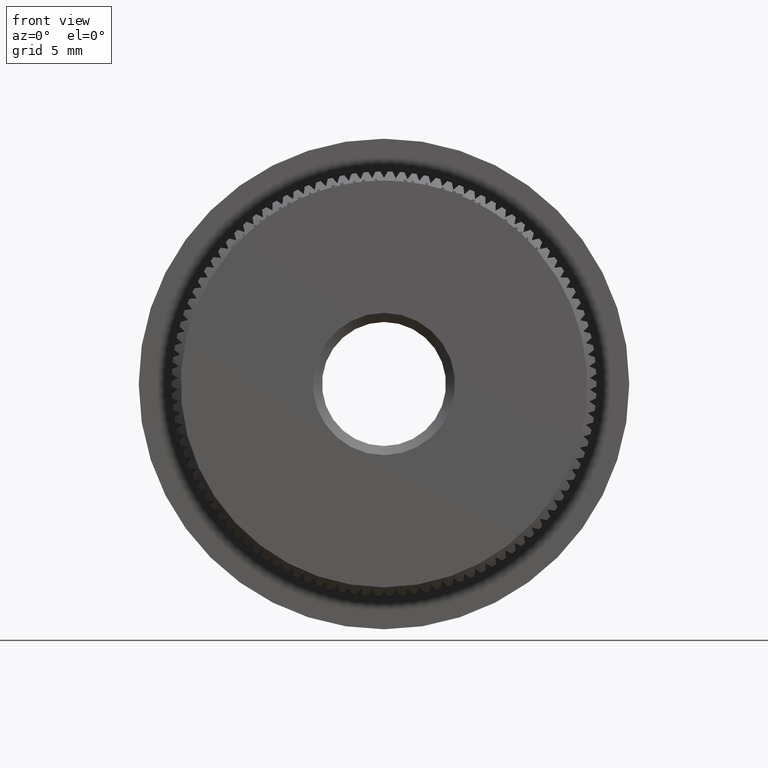
[diagram: clean part render]
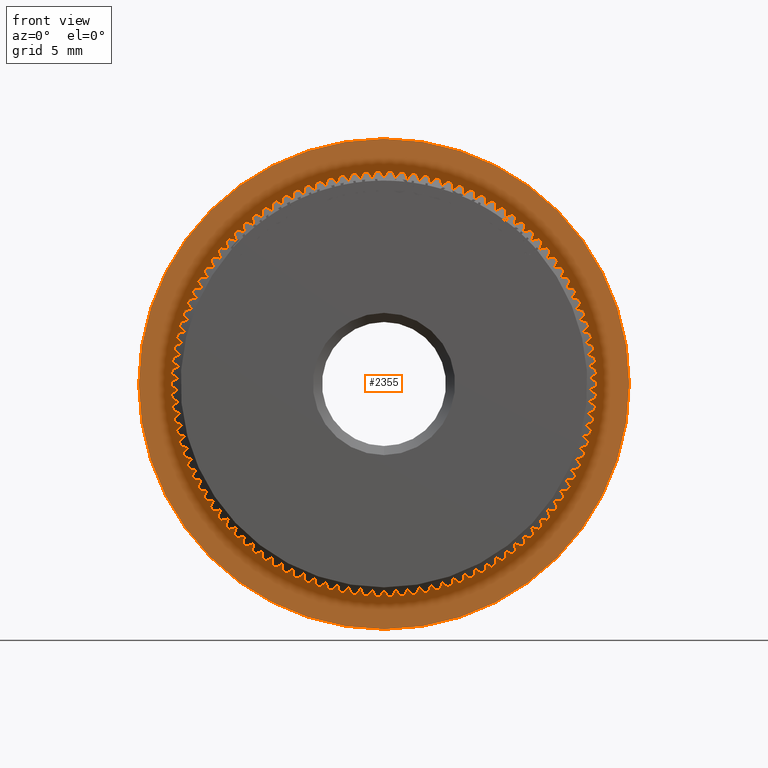
[diagram: same view with one face highlighted and labeled with its STEP entity id]
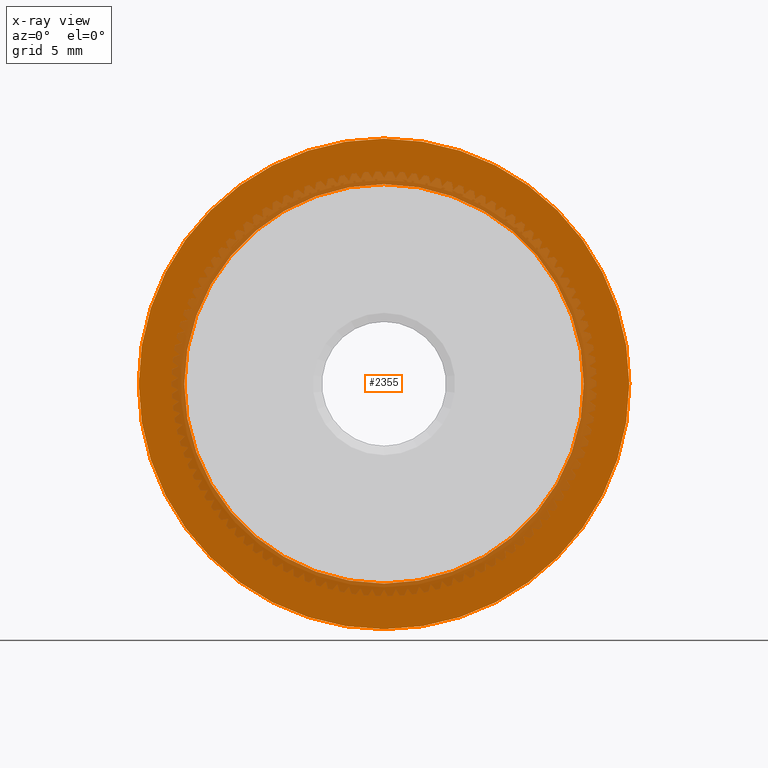
[diagram: x-ray of the same camera — body ghosted, the highlighted face saturated]
A machine part, front view. The second image highlights one B-rep face of the part: STEP entity #2355.
The next image is the same camera in x-ray: the body ghosted, the highlighted face saturated — about 23% of this face is hidden behind the body in this view.
In plain terms, the highlighted planar face has unit normal (0, -1, -0).
Its self-contained STEP definition (entity closure, byte-faithful):
#554 = VERTEX_POINT ( 'NONE', #15619 ) ;
#688 = FACE_OUTER_BOUND ( 'NONE', #5834, .T. ) ;
#1666 = AXIS2_PLACEMENT_3D ( 'NONE', #17389, #14092, #19121 ) ;
#2143 = CARTESIAN_POINT ( 'NONE',  ( 0.0000000000000000000, 7.000000000000000000, 0.0000000000000000000 ) ) ;
#2355 = ADVANCED_FACE ( 'NONE', ( #688, #9922 ), #9536, .T. ) ;
#2357 = CARTESIAN_POINT ( 'NONE',  ( 0.0000000000000000000, 7.000000000000000900, 0.0000000000000000000 ) ) ;
#2928 = EDGE_CURVE ( 'NONE', #3018, #6516, #18706, .T. ) ;
#3018 = VERTEX_POINT ( 'NONE', #20179 ) ;
#3314 = CIRCLE ( 'NONE', #1666, 13.44999999999999900 ) ;
#4966 = DIRECTION ( 'NONE',  ( 0.0000000000000000000, -1.000000000000000000, -0.0000000000000000000 ) ) ;
#5011 = DIRECTION ( 'NONE',  ( -0.0000000000000000000, -1.000000000000000000, -0.0000000000000000000 ) ) ;
#5058 = DIRECTION ( 'NONE',  ( -0.0000000000000000000, -1.000000000000000000, -0.0000000000000000000 ) ) ;
#5834 = EDGE_LOOP ( 'NONE', ( #13304, #6382 ) ) ;
#5888 = VERTEX_POINT ( 'NONE', #19057 ) ;
#6382 = ORIENTED_EDGE ( 'NONE', *, *, #12212, .T. ) ;
#6474 = ORIENTED_EDGE ( 'NONE', *, *, #12363, .F. ) ;
#6516 = VERTEX_POINT ( 'NONE', #7309 ) ;
#6937 = CIRCLE ( 'NONE', #16110, 13.44999999999999900 ) ;
#7309 = CARTESIAN_POINT ( 'NONE',  ( 0.0000000000000000000, 7.000000000000000900, -10.95000000000000100 ) ) ;
#8846 = DIRECTION ( 'NONE',  ( -0.0000000000000000000, -1.000000000000000000, -0.0000000000000000000 ) ) ;
#9536 = PLANE ( 'NONE',  #17253 ) ;
#9716 = CARTESIAN_POINT ( 'NONE',  ( 0.0000000000000000000, 7.000000000000000900, 0.0000000000000000000 ) ) ;
#9922 = FACE_BOUND ( 'NONE', #15974, .T. ) ;
#11137 = CARTESIAN_POINT ( 'NONE',  ( 10.95000000000000100, 7.000000000000000900, 0.0000000000000000000 ) ) ;
#11549 = AXIS2_PLACEMENT_3D ( 'NONE', #2357, #8846, #18450 ) ;
#11969 = CIRCLE ( 'NONE', #11549, 10.95000000000000100 ) ;
#12001 = ORIENTED_EDGE ( 'NONE', *, *, #2928, .F. ) ;
#12212 = EDGE_CURVE ( 'NONE', #554, #5888, #6937, .T. ) ;
#12363 = EDGE_CURVE ( 'NONE', #6516, #3018, #11969, .T. ) ;
#13304 = ORIENTED_EDGE ( 'NONE', *, *, #16841, .T. ) ;
#14092 = DIRECTION ( 'NONE',  ( -0.0000000000000000000, -1.000000000000000000, -0.0000000000000000000 ) ) ;
#14312 = DIRECTION ( 'NONE',  ( 0.0000000000000000000, 0.0000000000000000000, -1.000000000000000000 ) ) ;
#15619 = CARTESIAN_POINT ( 'NONE',  ( 1.647149944853190000E-015, 7.000000000000000000, 13.44999999999999900 ) ) ;
#15974 = EDGE_LOOP ( 'NONE', ( #6474, #12001 ) ) ;
#16110 = AXIS2_PLACEMENT_3D ( 'NONE', #2143, #5058, #16267 ) ;
#16267 = DIRECTION ( 'NONE',  ( 0.0000000000000000000, 0.0000000000000000000, -1.000000000000000000 ) ) ;
#16841 = EDGE_CURVE ( 'NONE', #5888, #554, #3314, .T. ) ;
#17253 = AXIS2_PLACEMENT_3D ( 'NONE', #11137, #4966, #14312 ) ;
#17389 = CARTESIAN_POINT ( 'NONE',  ( 0.0000000000000000000, 7.000000000000000000, 0.0000000000000000000 ) ) ;
#18450 = DIRECTION ( 'NONE',  ( 0.0000000000000000000, 0.0000000000000000000, -1.000000000000000000 ) ) ;
#18706 = CIRCLE ( 'NONE', #20728, 10.95000000000000100 ) ;
#19057 = CARTESIAN_POINT ( 'NONE',  ( 0.0000000000000000000, 7.000000000000000000, -13.44999999999999900 ) ) ;
#19121 = DIRECTION ( 'NONE',  ( 0.0000000000000000000, 0.0000000000000000000, -1.000000000000000000 ) ) ;
#19375 = DIRECTION ( 'NONE',  ( 0.0000000000000000000, 0.0000000000000000000, -1.000000000000000000 ) ) ;
#20179 = CARTESIAN_POINT ( 'NONE',  ( 1.383850883036509300E-015, 7.000000000000000900, 10.95000000000000100 ) ) ;
#20728 = AXIS2_PLACEMENT_3D ( 'NONE', #9716, #5011, #19375 ) ;